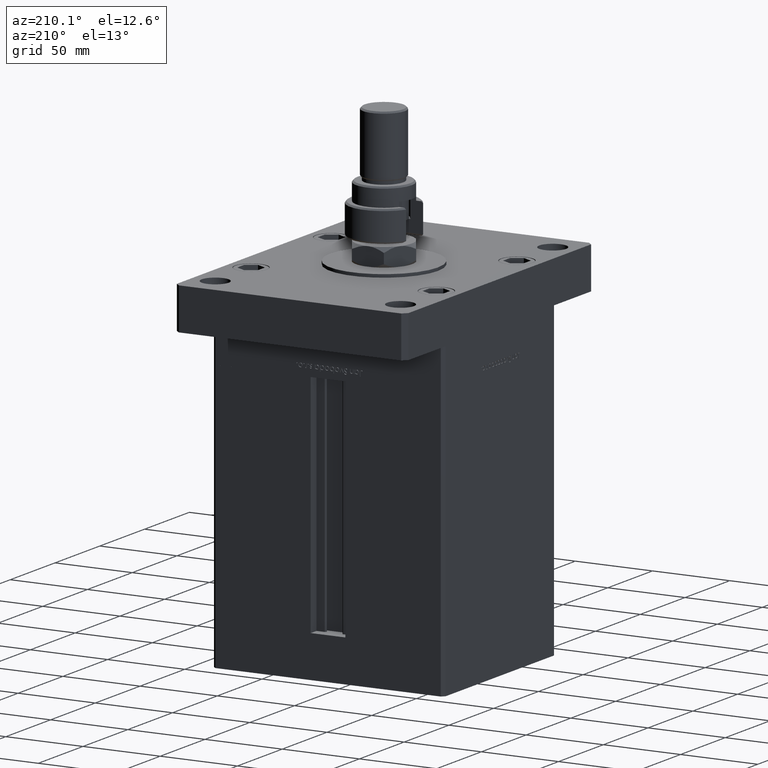
[diagram: clean part render]
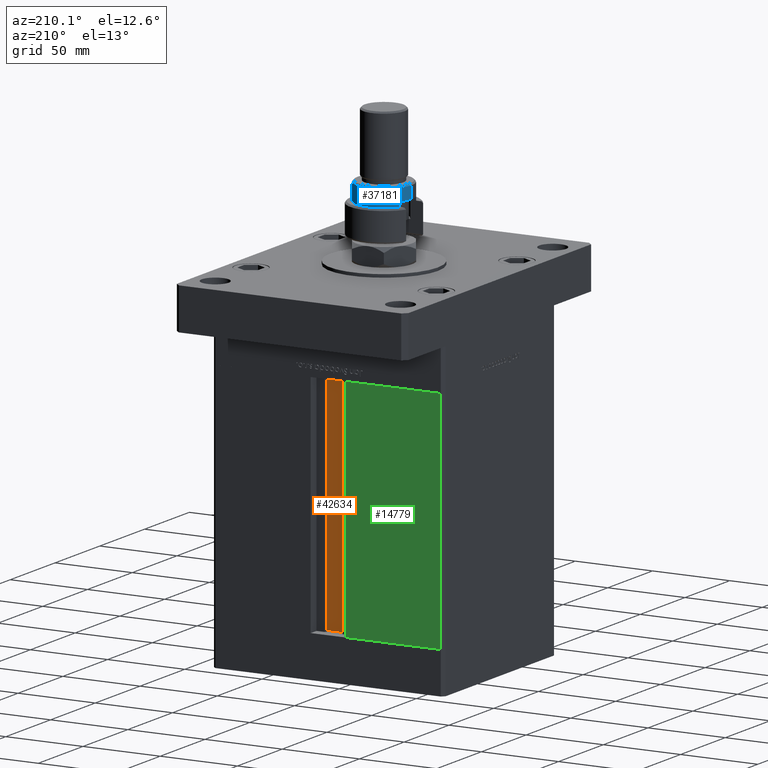
[diagram: same view with three faces highlighted in distinct colors, each labeled with its STEP entity id]
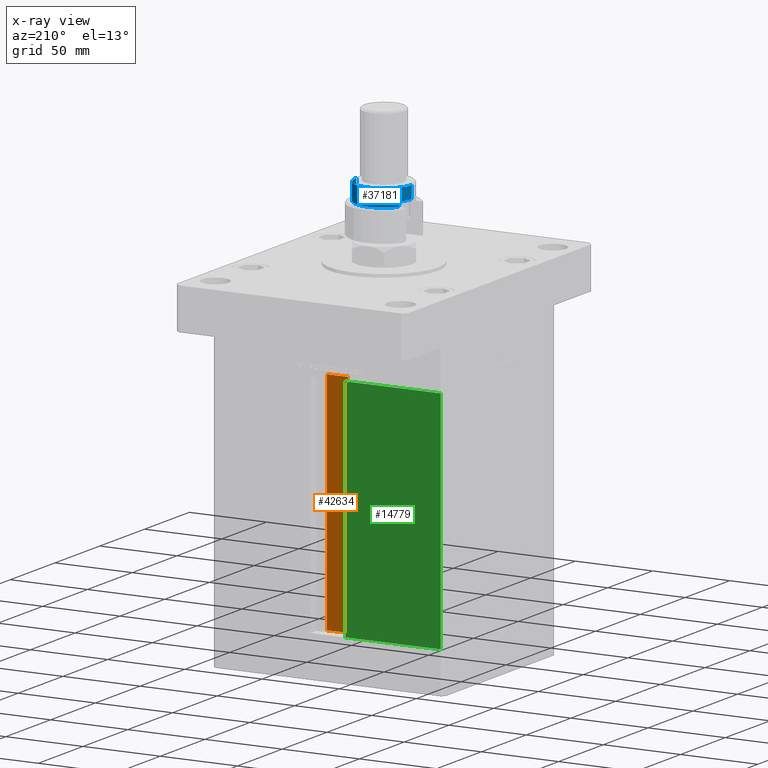
[diagram: x-ray of the same camera — body ghosted, the three highlighted faces saturated]
A machine part, auxiliary view with three faces highlighted in distinct colors.
The next image is the same camera in x-ray (body ghosted, the three faces saturated) — at least one of them is partly hidden behind the body in this view.
Their STEP definitions:

[orange] entity #42634 — the highlighted planar face has unit normal (0, -1, 0).
#568 = VERTEX_POINT ( 'NONE', #11041 ) ;
#3526 = CARTESIAN_POINT ( 'NONE',  ( 6.876153656360466826, 51.99999999999986500, 0.000000000000000000 ) ) ;
#6533 = DIRECTION ( 'NONE',  ( -1.000000000000000000, 0.000000000000000000, 0.000000000000000000 ) ) ;
#7513 = FACE_OUTER_BOUND ( 'NONE', #21982, .T. ) ;
#7799 = DIRECTION ( 'NONE',  ( 0.000000000000000000, 0.000000000000000000, -1.000000000000000000 ) ) ;
#8936 = DIRECTION ( 'NONE',  ( -0.000000000000000000, -0.000000000000000000, 1.000000000000000000 ) ) ;
#9010 = CARTESIAN_POINT ( 'NONE',  ( 6.876153656360466826, 51.99999999999986500, 0.000000000000000000 ) ) ;
#9133 = EDGE_CURVE ( 'NONE', #44878, #568, #21876, .T. ) ;
#11041 = CARTESIAN_POINT ( 'NONE',  ( 6.876153656360466826, 51.99999999999986500, 147.0000000000000000 ) ) ;
#11959 = ORIENTED_EDGE ( 'NONE', *, *, #29149, .T. ) ;
#13523 = DIRECTION ( 'NONE',  ( 1.000000000000000000, -0.000000000000000000, -0.000000000000000000 ) ) ;
#15684 = VERTEX_POINT ( 'NONE', #41116 ) ;
#16214 = ORIENTED_EDGE ( 'NONE', *, *, #27284, .F. ) ;
#16527 = VECTOR ( 'NONE', #13523, 1000.000000000000000 ) ;
#19627 = CARTESIAN_POINT ( 'NONE',  ( 0.000000000000000000, 51.99999999999986500, 147.0000000000000000 ) ) ;
#20904 = VERTEX_POINT ( 'NONE', #32757 ) ;
#21458 = PLANE ( 'NONE',  #25906 ) ;
#21876 = LINE ( 'NONE', #56456, #39774 ) ;
#21982 = EDGE_LOOP ( 'NONE', ( #31024, #33106, #11959, #16214 ) ) ;
#22043 = CARTESIAN_POINT ( 'NONE',  ( -6.876153656360466826, 51.99999999999986500, 0.000000000000000000 ) ) ;
#25906 = AXIS2_PLACEMENT_3D ( 'NONE', #3526, #47454, #7799 ) ;
#27284 = EDGE_CURVE ( 'NONE', #568, #20904, #36757, .T. ) ;
#29149 = EDGE_CURVE ( 'NONE', #15684, #20904, #49640, .T. ) ;
#30627 = LINE ( 'NONE', #43778, #16527 ) ;
#30643 = EDGE_CURVE ( 'NONE', #15684, #44878, #30627, .T. ) ;
#31024 = ORIENTED_EDGE ( 'NONE', *, *, #9133, .F. ) ;
#32757 = CARTESIAN_POINT ( 'NONE',  ( -6.876153656360466826, 51.99999999999986500, 147.0000000000000000 ) ) ;
#33106 = ORIENTED_EDGE ( 'NONE', *, *, #30643, .F. ) ;
#36757 = LINE ( 'NONE', #19627, #43053 ) ;
#39774 = VECTOR ( 'NONE', #52162, 1000.000000000000000 ) ;
#41116 = CARTESIAN_POINT ( 'NONE',  ( -6.876153656360466826, 51.99999999999986500, 0.000000000000000000 ) ) ;
#42634 = ADVANCED_FACE ( 'NONE', ( #7513 ), #21458, .F. ) ;
#43053 = VECTOR ( 'NONE', #6533, 1000.000000000000000 ) ;
#43778 = CARTESIAN_POINT ( 'NONE',  ( 6.876153656360466826, 51.99999999999986500, 0.000000000000000000 ) ) ;
#44878 = VERTEX_POINT ( 'NONE', #9010 ) ;
#47454 = DIRECTION ( 'NONE',  ( 0.000000000000000000, -1.000000000000000000, -0.000000000000000000 ) ) ;
#49491 = VECTOR ( 'NONE', #8936, 1000.000000000000000 ) ;
#49640 = LINE ( 'NONE', #22043, #49491 ) ;
#52162 = DIRECTION ( 'NONE',  ( -0.000000000000000000, -0.000000000000000000, 1.000000000000000000 ) ) ;
#56456 = CARTESIAN_POINT ( 'NONE',  ( 6.876153656360466826, 51.99999999999986500, 0.000000000000000000 ) ) ;

[blue] entity #37181 — the highlighted cylindrical surface (edge-blend (fillet) strip) has radius 18 mm, axis along (-0, -0, -1).
#818 = EDGE_CURVE ( 'NONE', #23788, #24518, #12948, .T. ) ;
#935 = VERTEX_POINT ( 'NONE', #40034 ) ;
#1037 = CARTESIAN_POINT ( 'NONE',  ( 0.000000000000000000, 0.000000000000000000, 32.00000000000000000 ) ) ;
#1587 = DIRECTION ( 'NONE',  ( -1.000000000000000000, 0.000000000000000000, 0.000000000000000000 ) ) ;
#3767 = ORIENTED_EDGE ( 'NONE', *, *, #47987, .F. ) ;
#6265 = VERTEX_POINT ( 'NONE', #46612 ) ;
#8124 = CARTESIAN_POINT ( 'NONE',  ( -18.00000000000000000, 0.000000000000000000, 30.99999999999999645 ) ) ;
#9355 = DIRECTION ( 'NONE',  ( -1.000000000000000000, 0.000000000000000000, 0.000000000000000000 ) ) ;
#9438 = VECTOR ( 'NONE', #47207, 1000.000000000000000 ) ;
#10051 = CARTESIAN_POINT ( 'NONE',  ( -18.00000000000000000, 0.000000000000000000, 32.00000000000000000 ) ) ;
#11756 = ORIENTED_EDGE ( 'NONE', *, *, #818, .T. ) ;
#11836 = VERTEX_POINT ( 'NONE', #8124 ) ;
#12368 = CARTESIAN_POINT ( 'NONE',  ( -15.28888485142065434, 9.500000000000000000, 19.99999999999999645 ) ) ;
#12926 = ORIENTED_EDGE ( 'NONE', *, *, #16629, .T. ) ;
#12948 = LINE ( 'NONE', #34901, #9438 ) ;
#15754 = DIRECTION ( 'NONE',  ( 1.000000000000000000, 0.000000000000000000, 0.000000000000000000 ) ) ;
#16629 = EDGE_CURVE ( 'NONE', #11836, #935, #43621, .T. ) ;
#17067 = LINE ( 'NONE', #21707, #54117 ) ;
#19294 = CARTESIAN_POINT ( 'NONE',  ( 0.000000000000000000, 0.000000000000000000, 23.00000000000000000 ) ) ;
#20029 = CARTESIAN_POINT ( 'NONE',  ( 0.000000000000000000, 0.000000000000000000, 30.99999999999999645 ) ) ;
#20305 = CARTESIAN_POINT ( 'NONE',  ( 0.000000000000000000, 0.000000000000000000, 20.00000000000000000 ) ) ;
#21707 = CARTESIAN_POINT ( 'NONE',  ( 18.00000000000000000, 2.204364238465235428E-15, 32.00000000000000000 ) ) ;
#23788 = VERTEX_POINT ( 'NONE', #12368 ) ;
#23989 = EDGE_CURVE ( 'NONE', #11836, #6265, #41132, .T. ) ;
#24518 = VERTEX_POINT ( 'NONE', #45910 ) ;
#27182 = AXIS2_PLACEMENT_3D ( 'NONE', #20029, #37444, #15754 ) ;
#27537 = DIRECTION ( 'NONE',  ( -0.000000000000000000, -0.000000000000000000, -1.000000000000000000 ) ) ;
#28185 = CARTESIAN_POINT ( 'NONE',  ( 18.00000000000000000, 2.204364238465235428E-15, 20.00000000000000000 ) ) ;
#28564 = ORIENTED_EDGE ( 'NONE', *, *, #34382, .T. ) ;
#30975 = FACE_OUTER_BOUND ( 'NONE', #54596, .T. ) ;
#33052 = CIRCLE ( 'NONE', #35842, 18.00000000000000000 ) ;
#34382 = EDGE_CURVE ( 'NONE', #51508, #23788, #33052, .T. ) ;
#34901 = CARTESIAN_POINT ( 'NONE',  ( -15.28888485142065434, 9.500000000000000000, 32.00000000000000000 ) ) ;
#35842 = AXIS2_PLACEMENT_3D ( 'NONE', #20305, #50599, #46302 ) ;
#35861 = EDGE_CURVE ( 'NONE', #935, #51508, #17067, .T. ) ;
#37181 = ADVANCED_FACE ( 'NONE', ( #30975 ), #40660, .T. ) ;
#37444 = DIRECTION ( 'NONE',  ( 0.000000000000000000, 0.000000000000000000, -1.000000000000000000 ) ) ;
#39288 = VECTOR ( 'NONE', #53442, 1000.000000000000000 ) ;
#40034 = CARTESIAN_POINT ( 'NONE',  ( 18.00000000000000000, 2.204364238465235428E-15, 30.99999999999999645 ) ) ;
#40660 = CYLINDRICAL_SURFACE ( 'NONE', #54156, 18.00000000000000000 ) ;
#40999 = DIRECTION ( 'NONE',  ( 0.000000000000000000, 0.000000000000000000, -1.000000000000000000 ) ) ;
#41132 = LINE ( 'NONE', #10051, #39288 ) ;
#41625 = CIRCLE ( 'NONE', #50734, 18.00000000000000000 ) ;
#42592 = ORIENTED_EDGE ( 'NONE', *, *, #35861, .T. ) ;
#43621 = CIRCLE ( 'NONE', #27182, 18.00000000000000000 ) ;
#45910 = CARTESIAN_POINT ( 'NONE',  ( -15.28888485142065434, 9.500000000000000000, 23.00000000000000000 ) ) ;
#46302 = DIRECTION ( 'NONE',  ( 1.000000000000000000, 0.000000000000000000, 0.000000000000000000 ) ) ;
#46612 = CARTESIAN_POINT ( 'NONE',  ( -18.00000000000000000, 0.000000000000000000, 23.00000000000000000 ) ) ;
#47054 = DIRECTION ( 'NONE',  ( -0.000000000000000000, -0.000000000000000000, -1.000000000000000000 ) ) ;
#47207 = DIRECTION ( 'NONE',  ( 0.000000000000000000, 0.000000000000000000, 1.000000000000000000 ) ) ;
#47987 = EDGE_CURVE ( 'NONE', #6265, #24518, #41625, .T. ) ;
#50599 = DIRECTION ( 'NONE',  ( 0.000000000000000000, 0.000000000000000000, 1.000000000000000000 ) ) ;
#50734 = AXIS2_PLACEMENT_3D ( 'NONE', #19294, #40999, #9355 ) ;
#51508 = VERTEX_POINT ( 'NONE', #28185 ) ;
#52080 = ORIENTED_EDGE ( 'NONE', *, *, #23989, .F. ) ;
#53442 = DIRECTION ( 'NONE',  ( -0.000000000000000000, -0.000000000000000000, -1.000000000000000000 ) ) ;
#54117 = VECTOR ( 'NONE', #47054, 1000.000000000000000 ) ;
#54156 = AXIS2_PLACEMENT_3D ( 'NONE', #1037, #27537, #1587 ) ;
#54596 = EDGE_LOOP ( 'NONE', ( #12926, #42592, #28564, #11756, #3767, #52080 ) ) ;

[green] entity #14779 — the highlighted planar face has unit normal (-0, -1, 0).
#1508 = VERTEX_POINT ( 'NONE', #33927 ) ;
#1715 = ORIENTED_EDGE ( 'NONE', *, *, #14780, .T. ) ;
#2197 = CARTESIAN_POINT ( 'NONE',  ( -11.25000000000000178, 62.49999999999999289, 147.0000000000000000 ) ) ;
#2310 = PLANE ( 'NONE',  #20690 ) ;
#2521 = VECTOR ( 'NONE', #19971, 1000.000000000000000 ) ;
#2603 = FACE_OUTER_BOUND ( 'NONE', #32397, .T. ) ;
#2882 = CARTESIAN_POINT ( 'NONE',  ( -11.25000000000000178, 62.49999999999999289, 147.0000000000000000 ) ) ;
#3254 = VECTOR ( 'NONE', #29189, 1000.000000000000000 ) ;
#3986 = EDGE_CURVE ( 'NONE', #28139, #42935, #5764, .T. ) ;
#5764 = LINE ( 'NONE', #41697, #22298 ) ;
#6252 = EDGE_CURVE ( 'NONE', #1508, #53544, #24628, .T. ) ;
#6888 = DIRECTION ( 'NONE',  ( -0.000000000000000000, -0.000000000000000000, -1.000000000000000000 ) ) ;
#8102 = CARTESIAN_POINT ( 'NONE',  ( -11.25000000000000178, 62.49999999999999289, 0.000000000000000000 ) ) ;
#11146 = LINE ( 'NONE', #20251, #2521 ) ;
#14779 = ADVANCED_FACE ( 'NONE', ( #2603 ), #2310, .F. ) ;
#14780 = EDGE_CURVE ( 'NONE', #1508, #42935, #11146, .T. ) ;
#15012 = DIRECTION ( 'NONE',  ( 1.000000000000000000, 0.000000000000000000, 0.000000000000000000 ) ) ;
#19971 = DIRECTION ( 'NONE',  ( -1.000000000000000000, 1.123707514802790025E-16, 0.000000000000000000 ) ) ;
#20251 = CARTESIAN_POINT ( 'NONE',  ( -11.25000000000000178, 62.49999999999999289, 0.000000000000000000 ) ) ;
#20690 = AXIS2_PLACEMENT_3D ( 'NONE', #2882, #54254, #36536 ) ;
#21100 = CARTESIAN_POINT ( 'NONE',  ( -73.00000000000001421, 62.50000000000000000, 0.000000000000000000 ) ) ;
#22298 = VECTOR ( 'NONE', #6888, 1000.000000000000000 ) ;
#23115 = ORIENTED_EDGE ( 'NONE', *, *, #6252, .F. ) ;
#24628 = LINE ( 'NONE', #8102, #3254 ) ;
#28139 = VERTEX_POINT ( 'NONE', #53928 ) ;
#28574 = EDGE_CURVE ( 'NONE', #28139, #53544, #42145, .T. ) ;
#28802 = CARTESIAN_POINT ( 'NONE',  ( -11.25000000000000178, 62.49999999999999289, 147.0000000000000000 ) ) ;
#29189 = DIRECTION ( 'NONE',  ( -0.000000000000000000, -0.000000000000000000, 1.000000000000000000 ) ) ;
#32397 = EDGE_LOOP ( 'NONE', ( #37993, #23115, #1715, #39858 ) ) ;
#33927 = CARTESIAN_POINT ( 'NONE',  ( -11.25000000000000178, 62.49999999999999289, 0.000000000000000000 ) ) ;
#34753 = VECTOR ( 'NONE', #15012, 1000.000000000000000 ) ;
#36536 = DIRECTION ( 'NONE',  ( 1.000000000000000000, -1.123707514802790025E-16, 0.000000000000000000 ) ) ;
#37993 = ORIENTED_EDGE ( 'NONE', *, *, #28574, .T. ) ;
#39858 = ORIENTED_EDGE ( 'NONE', *, *, #3986, .F. ) ;
#41697 = CARTESIAN_POINT ( 'NONE',  ( -73.00000000000001421, 62.50000000000000000, 147.0000000000000000 ) ) ;
#42145 = LINE ( 'NONE', #2197, #34753 ) ;
#42935 = VERTEX_POINT ( 'NONE', #21100 ) ;
#53544 = VERTEX_POINT ( 'NONE', #28802 ) ;
#53928 = CARTESIAN_POINT ( 'NONE',  ( -73.00000000000001421, 62.50000000000000000, 147.0000000000000000 ) ) ;
#54254 = DIRECTION ( 'NONE',  ( -1.123707514802790025E-16, -1.000000000000000000, 0.000000000000000000 ) ) ;